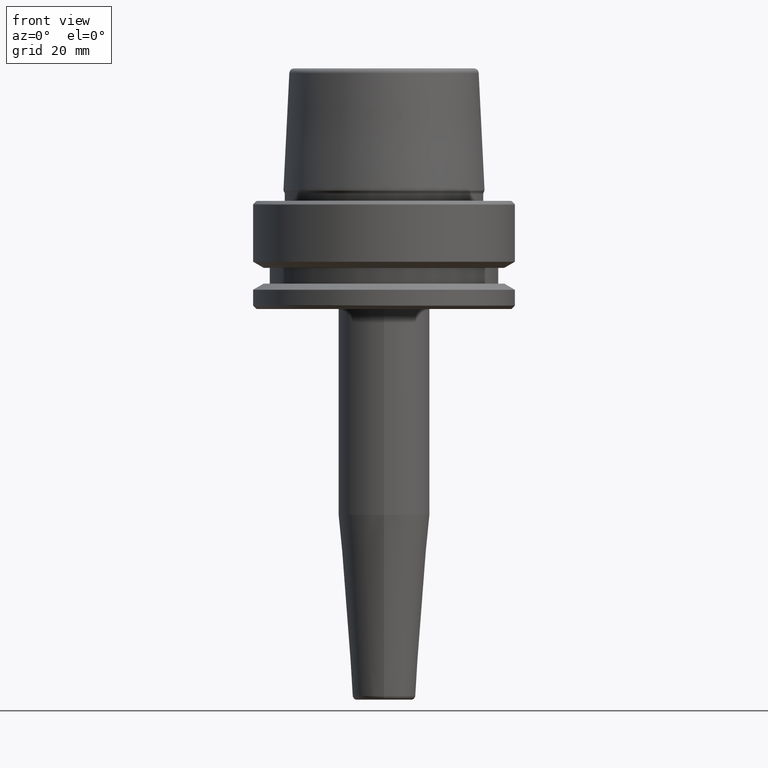
[diagram: clean part render]
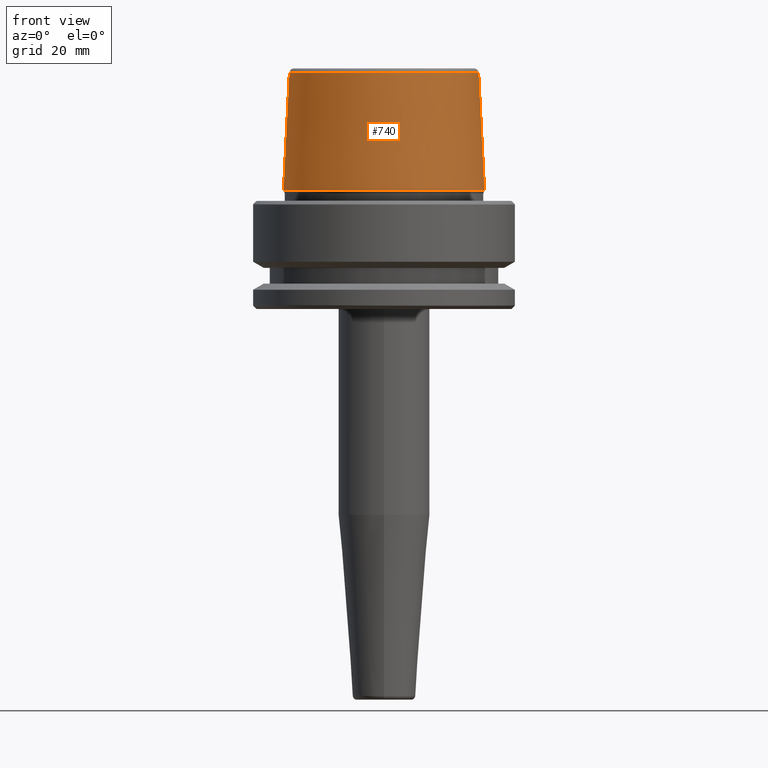
[diagram: same view with one face highlighted and labeled with its STEP entity id]
A machine part, front view. The second image highlights one B-rep face of the part: STEP entity #740.
In plain terms, the highlighted conical surface has half-angle 2.868 deg.
Its self-contained STEP definition (entity closure, byte-faithful):
#75 = CARTESIAN_POINT ( 'NONE',  ( 0.0000000000000000000, 0.0000000000000000000, 30.76004333261571900 ) ) ;
#104 = AXIS2_PLACEMENT_3D ( 'NONE', #1091, #520, #1188 ) ;
#135 = EDGE_CURVE ( 'NONE', #188, #793, #309, .T. ) ;
#138 = DIRECTION ( 'NONE',  ( 0.0000000000000000000, 0.0000000000000000000, -1.000000000000000000 ) ) ;
#164 = DIRECTION ( 'NONE',  ( 1.000000000000000000, 0.0000000000000000000, 0.0000000000000000000 ) ) ;
#176 = ORIENTED_EDGE ( 'NONE', *, *, #135, .F. ) ;
#181 = CARTESIAN_POINT ( 'NONE',  ( -24.19537568275369200, 0.0000000000000000000, 2.500000000000002200 ) ) ;
#188 = VERTEX_POINT ( 'NONE', #1213 ) ;
#220 = VERTEX_POINT ( 'NONE', #778 ) ;
#236 = CARTESIAN_POINT ( 'NONE',  ( 24.19537568275369200, 0.0000000000000000000, 2.500000000000002200 ) ) ;
#309 = LINE ( 'NONE', #626, #1052 ) ;
#330 = AXIS2_PLACEMENT_3D ( 'NONE', #75, #469, #164 ) ;
#372 = DIRECTION ( 'NONE',  ( 0.05003611051310804400, 6.127656258166099700E-018, -0.9987474093306675200 ) ) ;
#434 = CARTESIAN_POINT ( 'NONE',  ( -24.19537568275369200, 2.963078938405201500E-015, 2.500000000000002200 ) ) ;
#443 = EDGE_CURVE ( 'NONE', #220, #188, #1197, .T. ) ;
#469 = DIRECTION ( 'NONE',  ( -0.0000000000000000000, -0.0000000000000000000, 1.000000000000000000 ) ) ;
#520 = DIRECTION ( 'NONE',  ( -0.0000000000000000000, -0.0000000000000000000, 1.000000000000000000 ) ) ;
#581 = ORIENTED_EDGE ( 'NONE', *, *, #1254, .T. ) ;
#626 = CARTESIAN_POINT ( 'NONE',  ( 24.19537568275369200, 2.963078938405201500E-015, 2.500000000000002200 ) ) ;
#684 = VERTEX_POINT ( 'NONE', #434 ) ;
#729 = LINE ( 'NONE', #181, #1179 ) ;
#740 = ADVANCED_FACE ( 'NONE', ( #747 ), #945, .T. ) ;
#747 = FACE_OUTER_BOUND ( 'NONE', #1099, .T. ) ;
#778 = CARTESIAN_POINT ( 'NONE',  ( -22.77957961851797100, 0.0000000000000000000, 30.76004333261571900 ) ) ;
#793 = VERTEX_POINT ( 'NONE', #236 ) ;
#818 = CARTESIAN_POINT ( 'NONE',  ( 0.0000000000000000000, 0.0000000000000000000, 2.500000000000002200 ) ) ;
#835 = AXIS2_PLACEMENT_3D ( 'NONE', #818, #138, #1100 ) ;
#940 = ORIENTED_EDGE ( 'NONE', *, *, #443, .F. ) ;
#945 = CONICAL_SURFACE ( 'NONE', #835, 24.19537568275369200, 0.05005701257455997400 ) ;
#1052 = VECTOR ( 'NONE', #372, 1000.000000000000200 ) ;
#1054 = EDGE_CURVE ( 'NONE', #220, #684, #729, .T. ) ;
#1068 = ORIENTED_EDGE ( 'NONE', *, *, #1054, .T. ) ;
#1091 = CARTESIAN_POINT ( 'NONE',  ( 0.0000000000000000000, 0.0000000000000000000, 2.500000000000002200 ) ) ;
#1099 = EDGE_LOOP ( 'NONE', ( #176, #940, #1068, #581 ) ) ;
#1100 = DIRECTION ( 'NONE',  ( -1.000000000000000000, 0.0000000000000000000, 0.0000000000000000000 ) ) ;
#1179 = VECTOR ( 'NONE', #1246, 1000.000000000000200 ) ;
#1188 = DIRECTION ( 'NONE',  ( 1.000000000000000000, 0.0000000000000000000, 0.0000000000000000000 ) ) ;
#1190 = CIRCLE ( 'NONE', #104, 24.19537568275369200 ) ;
#1197 = CIRCLE ( 'NONE', #330, 22.77957961851797100 ) ;
#1213 = CARTESIAN_POINT ( 'NONE',  ( 22.77957961851797100, 2.876386432489616700E-015, 30.76004333261571900 ) ) ;
#1246 = DIRECTION ( 'NONE',  ( -0.05003611051310804400, 0.0000000000000000000, -0.9987474093306675200 ) ) ;
#1254 = EDGE_CURVE ( 'NONE', #684, #793, #1190, .T. ) ;